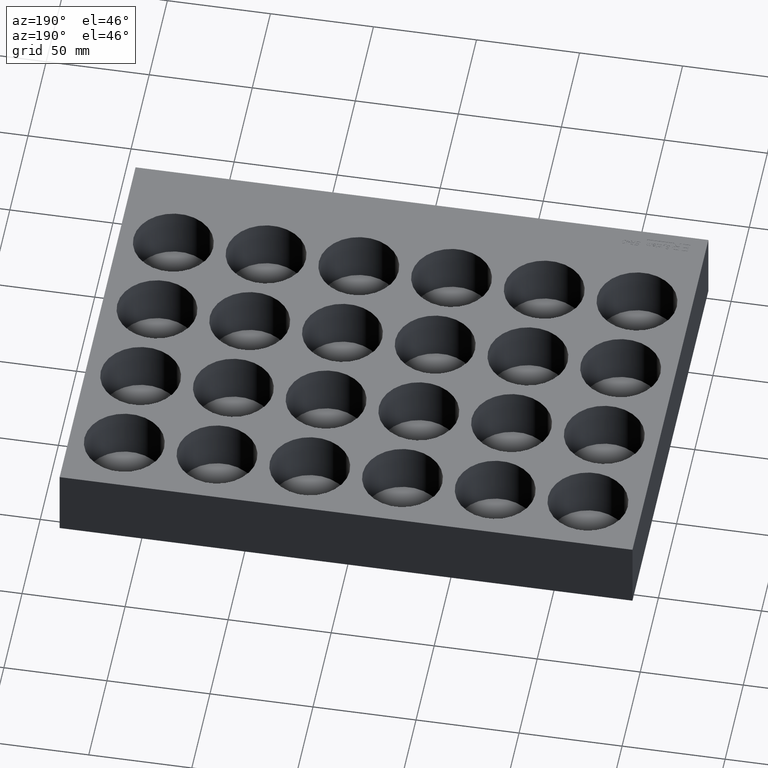
[diagram: clean part render]
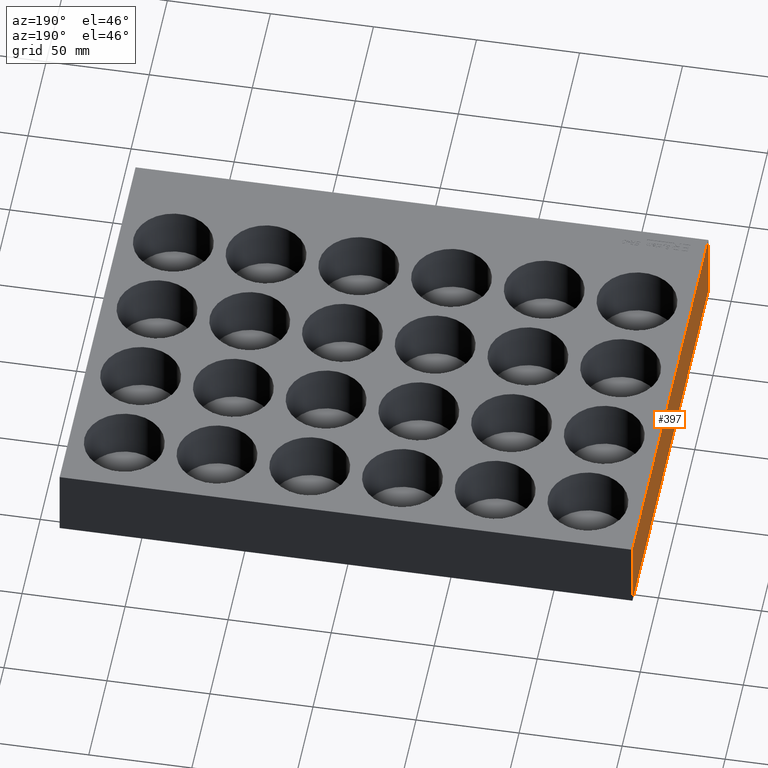
[diagram: same view with one face highlighted and labeled with its STEP entity id]
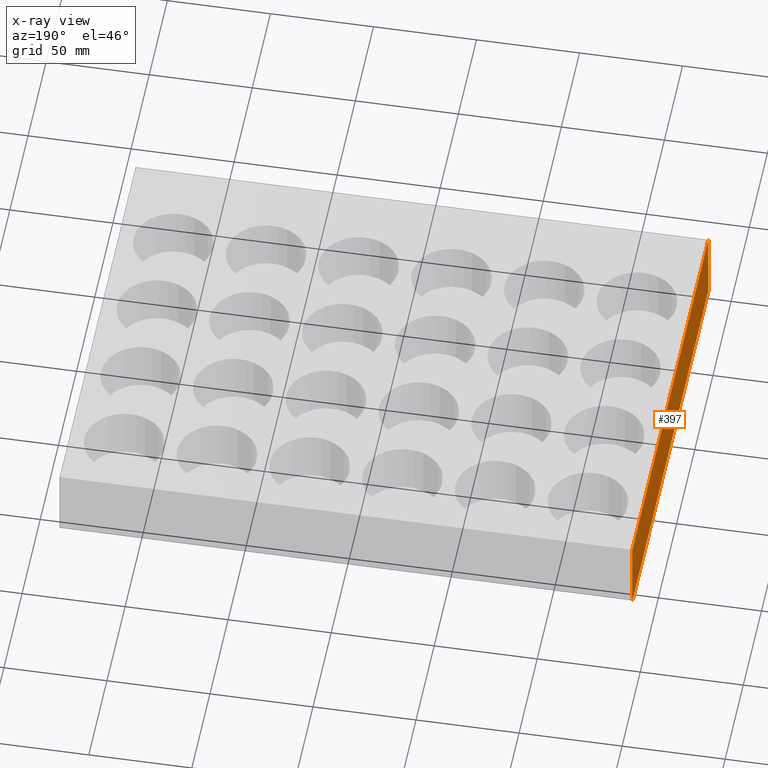
[diagram: x-ray of the same camera — body ghosted, the highlighted face saturated]
A machine part, auxiliary view. The second image highlights one B-rep face of the part: STEP entity #397.
The next image is the same camera in x-ray: the body ghosted, the highlighted face saturated — about 0% of this face is hidden behind the body in this view.
In plain terms, the highlighted planar face has unit normal (-1, 0, 0).
Its self-contained STEP definition (entity closure, byte-faithful):
#397 = ADVANCED_FACE( '', ( #882 ), #883, .T. );
#882 = FACE_OUTER_BOUND( '', #1496, .T. );
#883 = PLANE( '', #1497 );
#1496 = EDGE_LOOP( '', ( #2815, #2816, #2817, #2818 ) );
#1497 = AXIS2_PLACEMENT_3D( '', #2819, #2820, #2821 );
#2815 = ORIENTED_EDGE( '', *, *, #4080, .F. );
#2816 = ORIENTED_EDGE( '', *, *, #3950, .F. );
#2817 = ORIENTED_EDGE( '', *, *, #3920, .T. );
#2818 = ORIENTED_EDGE( '', *, *, #4081, .T. );
#2819 = CARTESIAN_POINT( '', ( -139.000000000000, 209.000000000000, -35.0000000000000 ) );
#2820 = DIRECTION( '', ( -1.00000000000000, 0.000000000000000, 0.000000000000000 ) );
#2821 = DIRECTION( '', ( 0.000000000000000, 0.000000000000000, 1.00000000000000 ) );
#3920 = EDGE_CURVE( '', #4593, #4594, #4595, .T. );
#3950 = EDGE_CURVE( '', #4593, #4639, #4642, .T. );
#4080 = EDGE_CURVE( '', #4639, #4834, #4835, .T. );
#4081 = EDGE_CURVE( '', #4594, #4834, #4836, .T. );
#4593 = VERTEX_POINT( '', #5992 );
#4594 = VERTEX_POINT( '', #5993 );
#4595 = LINE( '', #5994, #5995 );
#4639 = VERTEX_POINT( '', #6056 );
#4642 = LINE( '', #6061, #6062 );
#4834 = VERTEX_POINT( '', #6615 );
#4835 = LINE( '', #6616, #6617 );
#4836 = LINE( '', #6618, #6619 );
#5992 = CARTESIAN_POINT( '', ( -139.000000000000, 209.000000000000, -35.0000000000000 ) );
#5993 = CARTESIAN_POINT( '', ( -139.000000000000, -1.02650797503298E-014, -35.0000000000000 ) );
#5994 = CARTESIAN_POINT( '', ( -139.000000000000, 209.000000000000, -35.0000000000000 ) );
#5995 = VECTOR( '', #7378, 1000.00000000000 );
#6056 = CARTESIAN_POINT( '', ( -139.000000000000, 209.000000000000, 0.000000000000000 ) );
#6061 = CARTESIAN_POINT( '', ( -139.000000000000, 209.000000000000, -35.0000000000000 ) );
#6062 = VECTOR( '', #7407, 1000.00000000000 );
#6615 = CARTESIAN_POINT( '', ( -139.000000000000, -1.02650797503298E-014, 0.000000000000000 ) );
#6616 = CARTESIAN_POINT( '', ( -139.000000000000, 209.000000000000, 0.000000000000000 ) );
#6617 = VECTOR( '', #7501, 1000.00000000000 );
#6618 = CARTESIAN_POINT( '', ( -139.000000000000, -1.02650797503298E-014, -35.0000000000000 ) );
#6619 = VECTOR( '', #7502, 1000.00000000000 );
#7378 = DIRECTION( '', ( 0.000000000000000, -1.00000000000000, 0.000000000000000 ) );
#7407 = DIRECTION( '', ( 0.000000000000000, 0.000000000000000, 1.00000000000000 ) );
#7501 = DIRECTION( '', ( 0.000000000000000, -1.00000000000000, 0.000000000000000 ) );
#7502 = DIRECTION( '', ( 0.000000000000000, 0.000000000000000, 1.00000000000000 ) );